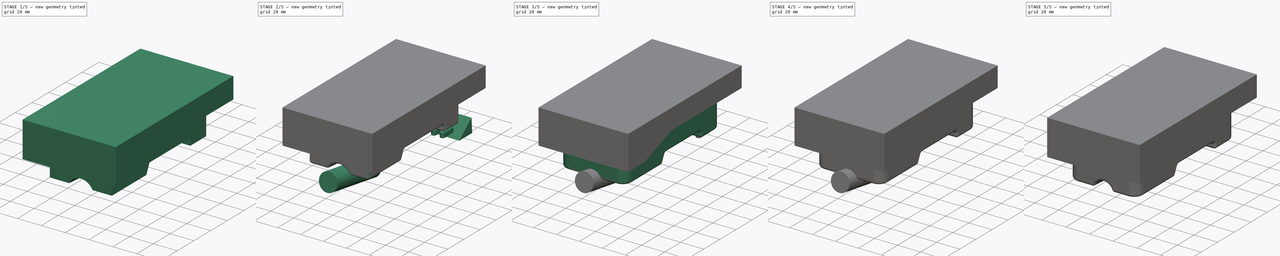
[diagram: build sequence overview — one tinted view per stage of 5, left to right]
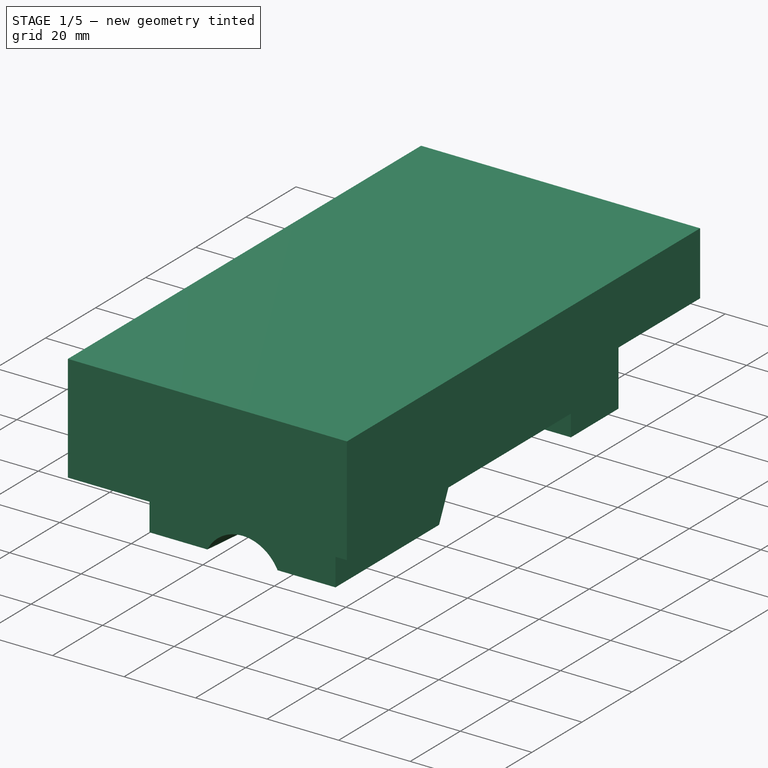
[diagram: stage 1 of 5 — iso view after this stage's code; geometry added in this stage tinted green]
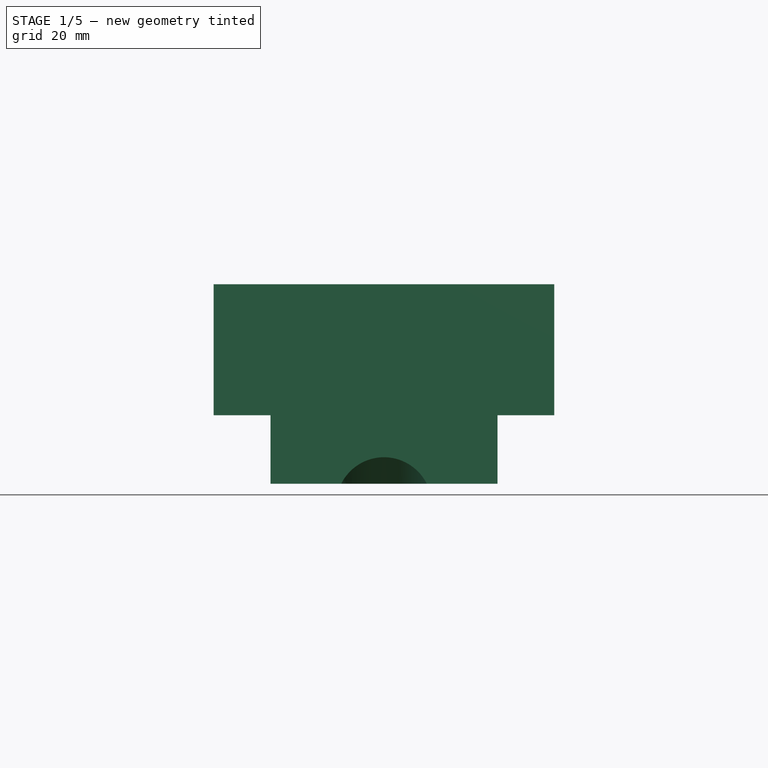
[diagram: stage 1 of 5 — front view after this stage's code; geometry added in this stage tinted green]
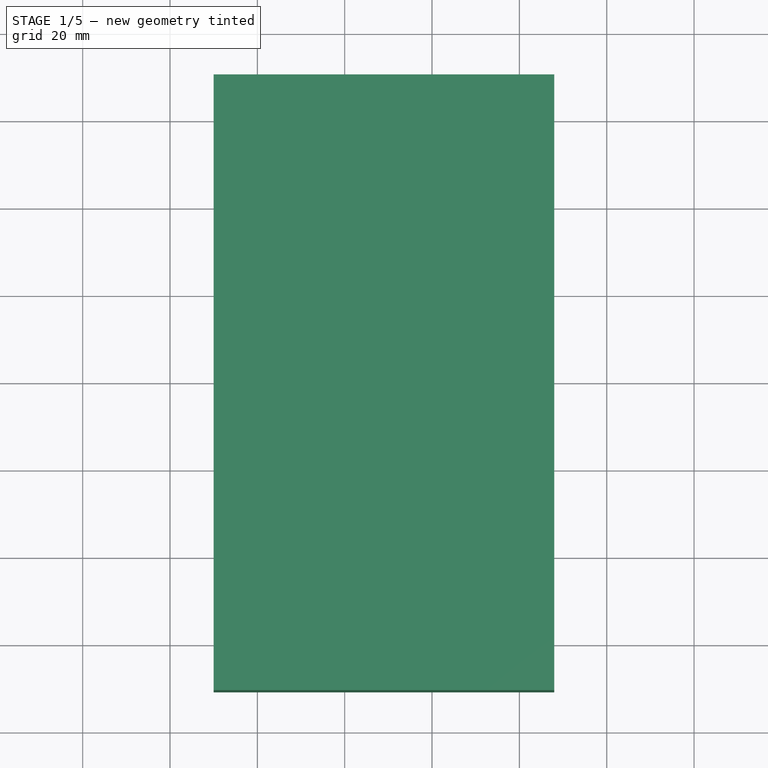
[diagram: stage 1 of 5 — top view after this stage's code; geometry added in this stage tinted green]
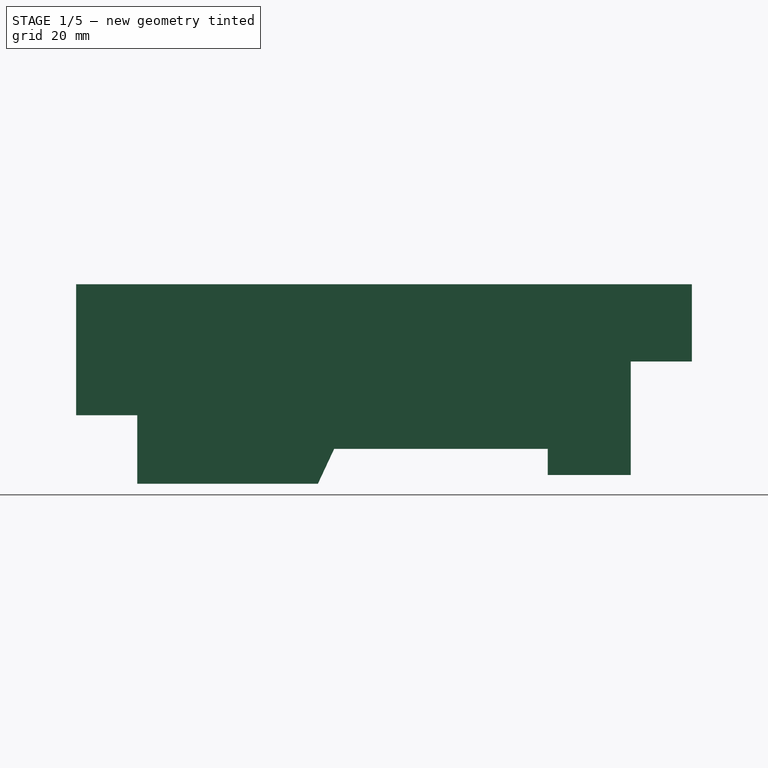
[diagram: stage 1 of 5 — right view after this stage's code; geometry added in this stage tinted green]
FCSTD DOCUMENT  (FreeCAD 0.15R4671 (Git))
Label: vaterra-caja-radio
License: All rights reserved
LicenseURL: http://en.wikipedia.org/wiki/All_rights_reserved
objects: Part::Fillet×7, Sketcher::SketchObject×6, PartDesign::Pad×6, Part::Cut×6, Part::Cylinder×2, Part::FeaturePython×1
note: 34 computed .brp shape members not serialized (recipe doc carries the construction recipe); baked Part::Feature solids carry a one-line shape summary decoded from their .brp

FEATURE [Sketcher::SketchObject] Sketch004
  Placement = pos=(3,0,0) rot=(0.57735,0.57735,0.57735;2.0944rad)
  sketch-geometry (27):
    g0: LineSegment [constr] StartX=119 StartY=2 StartZ=0 EndX=94 EndY=2 EndZ=0
    g1: LineSegment [constr] StartX=94 StartY=2 StartZ=0 EndX=94 EndY=8 EndZ=0
    g2: LineSegment [constr] StartX=94 StartY=8 StartZ=0 EndX=50 EndY=8 EndZ=0
    g3: LineSegment [constr] StartX=50 StartY=8 StartZ=0 EndX=46.2695 EndY=0 EndZ=0
    g4: LineSegment [constr] StartX=46.2695 StartY=0 StartZ=0 EndX=0 EndY=0 EndZ=0
    g5: LineSegment [constr] StartX=0 StartY=0 StartZ=0 EndX=0 EndY=25 EndZ=0
    g6: LineSegment [constr] StartX=0 StartY=25 StartZ=0 EndX=41.2695 EndY=40 EndZ=0
    g7: LineSegment [constr] StartX=41.2695 StartY=40 StartZ=0 EndX=119 EndY=40 EndZ=0
    g8: LineSegment [constr] StartX=119 StartY=40 StartZ=0 EndX=119 EndY=2 EndZ=0
    g9: LineSegment StartX=3 StartY=22.8984 StartZ=0 EndX=41.7978 EndY=37 EndZ=0
    g10: LineSegment StartX=41.7978 StartY=37 StartZ=0 EndX=116 EndY=37 EndZ=0
    g11: LineSegment StartX=116 StartY=37 StartZ=0 EndX=116 EndY=5 EndZ=0
    g12: LineSegment StartX=116 StartY=5 StartZ=0 EndX=97 EndY=5 EndZ=0
    g13: LineSegment StartX=97 StartY=5 StartZ=0 EndX=97 EndY=11 EndZ=0
    g14: LineSegment StartX=97 StartY=11 StartZ=0 EndX=48.0888 EndY=11 EndZ=0
    g15: LineSegment StartX=48.0888 StartY=11 StartZ=0 EndX=44.3583 EndY=3 EndZ=0
    g16: LineSegment StartX=44.3583 StartY=3 StartZ=0 EndX=3 EndY=3 EndZ=0
    g17: LineSegment StartX=3 StartY=3 StartZ=0 EndX=3 EndY=22.8984 EndZ=0
    g18: LineSegment [constr] StartX=3 StartY=3 StartZ=0 EndX=0 EndY=3 EndZ=0
    g19: LineSegment [constr] StartX=3 StartY=22.8984 StartZ=0 EndX=1.9752 EndY=25.7179 EndZ=0
    g20: LineSegment [constr] StartX=116 StartY=37 StartZ=0 EndX=116 EndY=40 EndZ=0
    g21: LineSegment [constr] StartX=116 StartY=37 StartZ=0 EndX=119 EndY=37 EndZ=0
    g22: LineSegment [constr] StartX=116 StartY=5 StartZ=0 EndX=116 EndY=2 EndZ=0
    g23: LineSegment [constr] StartX=97 StartY=5 StartZ=0 EndX=94 EndY=5 EndZ=0
    g24: LineSegment [constr] StartX=94 StartY=8 StartZ=0 EndX=94 EndY=11 EndZ=0
    g25: LineSegment [constr] StartX=50 StartY=8 StartZ=0 EndX=47.2811 EndY=9.26785 EndZ=0
    g26: LineSegment [constr] StartX=44.3583 StartY=3 StartZ=0 EndX=44.3583 EndY=0 EndZ=0
  constraints (80):
    c: Horizontal(g0)
    c: Coincident(g0,g1)
    c: Coincident(g1,g2)
    c: Horizontal(g2)
    c: Coincident(g2,g3)
    c: Coincident(g3,g4)
    c: Horizontal(g4)
    c: Coincident(g4,g5)
    c: Vertical(g5)
    c: Coincident(g5,g6)
    c: Coincident(g6,g7)
    c: Horizontal(g7)
    c: Coincident(g7,g8)
    c: Coincident(g8,g0)
    c: Vertical(g8)
    c: Distance(g0) = 25
    c: Vertical(g1)
    c: Distance(g2) = 44
    c: DistanceY(g3,g2) = 8
    c: Distance(g1) = 6
    c: DistanceX(g4,g2) = 50
    c: DistanceY(g7,g1) = -32
    c: Distance(g5) = 25
    c: DistanceX(g6,g3) = 5
    c: Angle(g3,g2) = 2.00713
    c: Coincident(g4,g-1)
    c: Coincident(g9,g10)
    c: Horizontal(g10)
    c: Coincident(g10,g11)
    c: Vertical(g11)
    c: Horizontal(g12)
    c: Coincident(g12,g13)
    c: Vertical(g13)
    c: Coincident(g13,g14)
    c: Horizontal(g14)
    c: Coincident(g14,g15)
    c: Coincident(g15,g16)
    c: Horizontal(g16)
    c: Coincident(g16,g17)
    c: Vertical(g17)
    c: Coincident(g9,g17)
    c: PointOnObject(g18,g5)
    c: Horizontal(g18)
    c: Coincident(g16,g18)
    c: Coincident(g19,g9)
    c: Perpendicular(g19,g6)
    c: Coincident(g20,g10)
    c: PointOnObject(g20,g7)
    c: Vertical(g20)
    c: Coincident(g21,g10)
    c: PointOnObject(g21,g8)
    c: Horizontal(g21)
    c: Coincident(g12,g11)
    c: Coincident(g22,g11)
    c: PointOnObject(g22,g0)
    c: Vertical(g22)
    c: Coincident(g23,g12)
    c: PointOnObject(g23,g1)
    c: Horizontal(g23)
    c: Coincident(g24,g1)
    c: PointOnObject(g24,g14)
    c: Vertical(g24)
    c: Coincident(g25,g2)
    c: PointOnObject(g25,g15)
    c: Perpendicular(g15,g25)
    c: Coincident(g26,g15)
    c: PointOnObject(g26,g4)
    c: Vertical(g26)
    c: Equal(g19,g18)
    c: Equal(g18,g20)
    c: Equal(g20,g21)
    c: Equal(g21,g23)
    c: Equal(g23,g22)
    c: Equal(g22,g24)
    c: Equal(g24,g26)
    c: Equal(g26,g25)
    c: Parallel(g15,g3)
    c: Parallel(g6,g9)
    c: PointOnObject(g19,g6)
    c: Distance(g18) = 3
FEATURE [PartDesign::Pad] Pad004
  Length = 52
  Length2 = 100
  Placement = pos=(3,0,0) rot=(0.57735,0.57735,0.57735;2.0944rad)
  Sketch = -> Sketch004
  Type = 0
FEATURE [Part::Cylinder] Cylinder001
  Angle = 360
  Height = 55
  Placement = pos=(29,-10,0) rot=(-1,0,0;1.72788rad)
  Radius = 11
FEATURE [Part::Cut] Cut004
  Base = -> Pad004
  Tool = -> Cylinder001
FEATURE [Sketcher::SketchObject] Sketch005
  Placement = pos=(-10,0,0) rot=(0.57735,0.57735,0.57735;2.0944rad)
  sketch-geometry (32):
    g0: LineSegment [constr] StartX=119 StartY=2 StartZ=0 EndX=94 EndY=2 EndZ=0
    g1: LineSegment [constr] StartX=94 StartY=2 StartZ=0 EndX=94 EndY=8 EndZ=0
    g2: LineSegment [constr] StartX=94 StartY=8 StartZ=0 EndX=50 EndY=8 EndZ=0
    g3: LineSegment [constr] StartX=50 StartY=8 StartZ=0 EndX=46.2695 EndY=0 EndZ=0
    g4: LineSegment [constr] StartX=46.2695 StartY=0 StartZ=0 EndX=0 EndY=0 EndZ=0
    g5: LineSegment [constr] StartX=0 StartY=0 StartZ=0 EndX=0 EndY=25 EndZ=0
    g6: LineSegment [constr] StartX=0 StartY=25 StartZ=0 EndX=41.2695 EndY=40 EndZ=0
    g7: LineSegment [constr] StartX=41.2695 StartY=40 StartZ=0 EndX=119 EndY=40 EndZ=0
    g8: LineSegment [constr] StartX=119 StartY=40 StartZ=0 EndX=119 EndY=2 EndZ=0
    g9: LineSegment StartX=9 StartY=18.6951 StartZ=0 EndX=42.8544 EndY=31 EndZ=0
    g10: LineSegment StartX=42.8544 StartY=31 StartZ=0 EndX=110 EndY=31 EndZ=0
    g11: LineSegment [constr] StartX=110 StartY=31 StartZ=0 EndX=110 EndY=11 EndZ=0
    g12: LineSegment [constr] StartX=110 StartY=11 StartZ=0 EndX=103 EndY=11 EndZ=0
    g13: LineSegment [constr] StartX=103 StartY=11 StartZ=0 EndX=103 EndY=17 EndZ=0
    g14: LineSegment [constr] StartX=103 StartY=17 StartZ=0 EndX=44.2664 EndY=17 EndZ=0
    g15: LineSegment [constr] StartX=44.2664 StartY=17 StartZ=0 EndX=40.5359 EndY=9 EndZ=0
    g16: LineSegment [constr] StartX=40.5359 StartY=9 StartZ=0 EndX=9 EndY=9 EndZ=0
    g17: LineSegment [constr] StartX=9 StartY=9 StartZ=0 EndX=9 EndY=18.6951 EndZ=0
    g18: LineSegment [constr] StartX=9 StartY=9 StartZ=0 EndX=0 EndY=9 EndZ=0
    g19: LineSegment [constr] StartX=9 StartY=18.6951 StartZ=0 EndX=5.9256 EndY=27.1537 EndZ=0
    g20: LineSegment [constr] StartX=110 StartY=31 StartZ=0 EndX=110 EndY=40 EndZ=0
    g21: LineSegment [constr] StartX=110 StartY=31 StartZ=0 EndX=119 EndY=31 EndZ=0
    g22: LineSegment [constr] StartX=110 StartY=11 StartZ=0 EndX=110 EndY=2 EndZ=0
    g23: LineSegment [constr] StartX=103 StartY=11 StartZ=0 EndX=94 EndY=11 EndZ=0
    g24: LineSegment [constr] StartX=94 StartY=8 StartZ=0 EndX=94 EndY=17 EndZ=0
    g25: LineSegment [constr] StartX=50 StartY=8 StartZ=0 EndX=41.8432 EndY=11.8036 EndZ=0
    g26: LineSegment [constr] StartX=40.5359 StartY=9 StartZ=0 EndX=40.5359 EndY=0 EndZ=0
    g27: LineSegment StartX=9 StartY=18.6951 StartZ=0 EndX=-11 EndY=18.6951 EndZ=0
    g28: LineSegment StartX=-11 StartY=18.6951 StartZ=0 EndX=-11 EndY=48.6951 EndZ=0
    g29: LineSegment StartX=-11 StartY=48.6951 StartZ=0 EndX=130 EndY=48.6951 EndZ=0
    g30: LineSegment StartX=130 StartY=48.6951 StartZ=0 EndX=130 EndY=31 EndZ=0
    g31: LineSegment StartX=130 StartY=31 StartZ=0 EndX=110 EndY=31 EndZ=0
  constraints (94):
    c: Horizontal(g0)
    c: Coincident(g0,g1)
    c: Coincident(g1,g2)
    c: Horizontal(g2)
    c: Coincident(g2,g3)
    c: Coincident(g3,g4)
    c: Horizontal(g4)
    c: Coincident(g4,g5)
    c: Vertical(g5)
    c: Coincident(g5,g6)
    c: Coincident(g6,g7)
    c: Horizontal(g7)
    c: Coincident(g7,g8)
    c: Coincident(g8,g0)
    c: Vertical(g8)
    c: Distance(g0) = 25
    c: Vertical(g1)
    c: Distance(g2) = 44
    c: DistanceY(g3,g2) = 8
    c: Distance(g1) = 6
    c: DistanceX(g4,g2) = 50
    c: DistanceY(g7,g1) = -32
    c: Distance(g5) = 25
    c: DistanceX(g6,g3) = 5
    c: Angle(g3,g2) = 2.00713
    c: Coincident(g4,g-1)
    c: Coincident(g9,g10)
    c: Horizontal(g10)
    c: Coincident(g10,g11)
    c: Vertical(g11)
    c: Horizontal(g12)
    c: Coincident(g12,g13)
    c: Vertical(g13)
    c: Coincident(g13,g14)
    c: Horizontal(g14)
    c: Coincident(g14,g15)
    c: Coincident(g15,g16)
    c: Horizontal(g16)
    c: Coincident(g16,g17)
    c: Vertical(g17)
    c: Coincident(g9,g17)
    c: PointOnObject(g18,g5)
    c: Horizontal(g18)
    c: Coincident(g16,g18)
    c: Coincident(g19,g9)
    c: Perpendicular(g19,g6)
    c: Coincident(g20,g10)
    c: PointOnObject(g20,g7)
    c: Vertical(g20)
    c: Coincident(g21,g10)
    c: PointOnObject(g21,g8)
    c: Horizontal(g21)
    c: Coincident(g12,g11)
    c: Coincident(g22,g11)
    c: PointOnObject(g22,g0)
    c: Vertical(g22)
    c: Coincident(g23,g12)
    c: PointOnObject(g23,g1)
    c: Horizontal(g23)
    c: Coincident(g24,g1)
    c: PointOnObject(g24,g14)
    c: Vertical(g24)
    c: Coincident(g25,g2)
    c: PointOnObject(g25,g15)
    c: Perpendicular(g15,g25)
    c: Coincident(g26,g15)
    c: PointOnObject(g26,g4)
    c: Vertical(g26)
    c: Equal(g19,g18)
    c: Equal(g18,g20)
    c: Equal(g20,g21)
    c: Equal(g21,g23)
    c: Equal(g23,g22)
    c: Equal(g22,g24)
    c: Equal(g24,g26)
    c: Equal(g26,g25)
    c: Parallel(g15,g3)
    c: Parallel(g6,g9)
    c: PointOnObject(g19,g6)
    c: Distance(g18) = 9
    c: Coincident(g9,g27)
    c: Horizontal(g27)
    c: Coincident(g27,g28)
    c: Vertical(g28)
    c: Coincident(g28,g29)
    c: Horizontal(g29)
    c: Coincident(g29,g30)
    c: Coincident(g30,g31)
    c: Coincident(g31,g10)
    c: Horizontal(g31)
    c: Vertical(g30)
    c: Distance(g31) = 20
    c: Distance(g27) = 20
    c: Distance(g28) = 30
FEATURE [PartDesign::Pad] Pad005
  Length = 78
  Length2 = 100
  Placement = pos=(-10,0,0) rot=(0.57735,0.57735,0.57735;2.0944rad)
  Sketch = -> Sketch005
  Type = 0
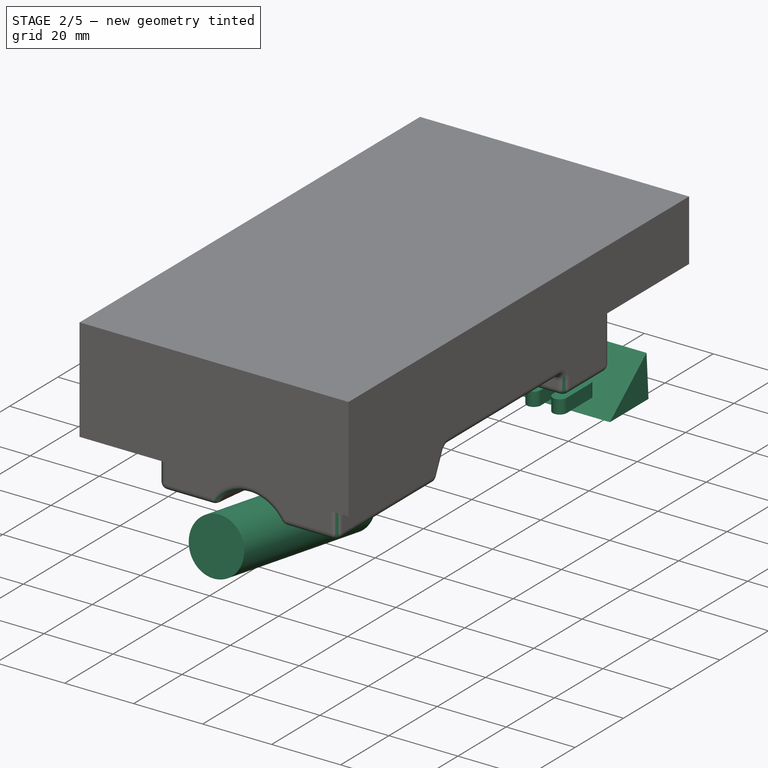
[diagram: stage 2 of 5 — iso view after this stage's code; geometry added in this stage tinted green]
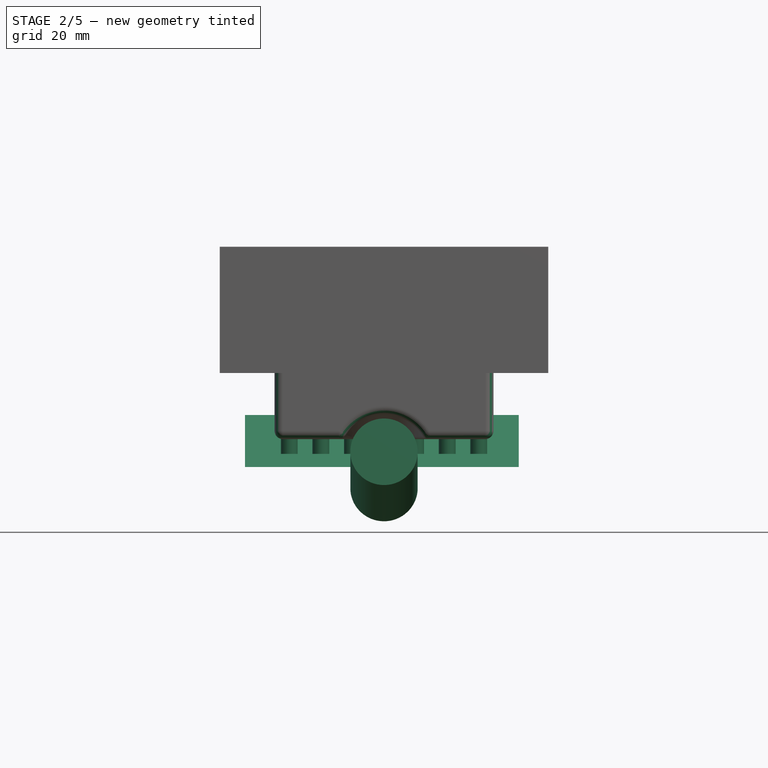
[diagram: stage 2 of 5 — front view after this stage's code; geometry added in this stage tinted green]
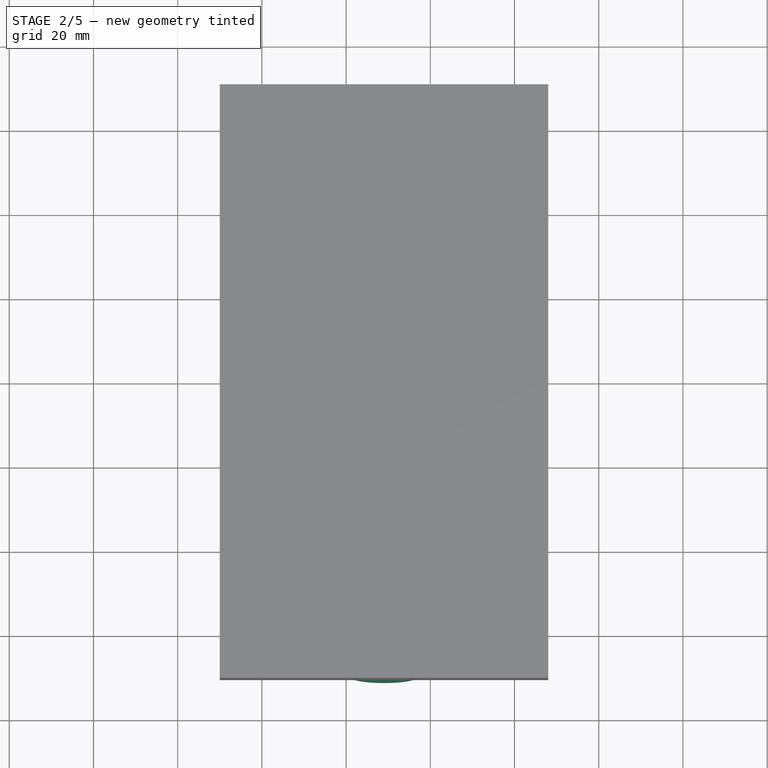
[diagram: stage 2 of 5 — top view after this stage's code; geometry added in this stage tinted green]
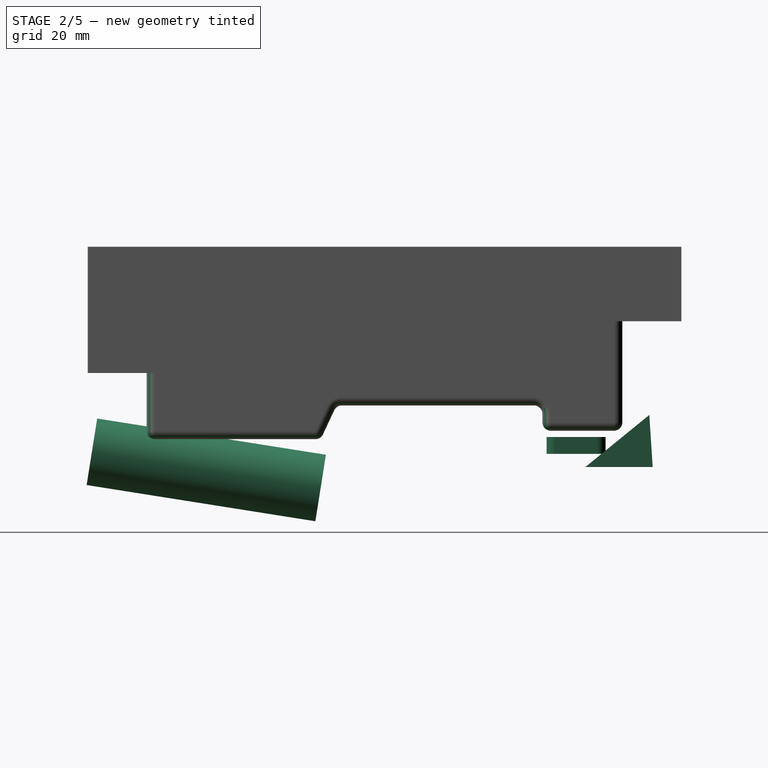
[diagram: stage 2 of 5 — right view after this stage's code; geometry added in this stage tinted green]
FEATURE [Sketcher::SketchObject] Sketch002
  Placement = pos=(-4,0,0) rot=(0.57735,0.57735,0.57735;2.0944rad)
  sketch-geometry (3):
    g0: LineSegment StartX=107.197 StartY=-3.62599 StartZ=0 EndX=122.389 EndY=8.74288 EndZ=0
    g1: LineSegment StartX=122.389 StartY=8.74288 StartZ=0 EndX=123.196 EndY=-3.62599 EndZ=0
    g2: LineSegment StartX=123.196 StartY=-3.62599 StartZ=0 EndX=107.197 EndY=-3.62599 EndZ=0
  constraints (4):
    c: Coincident(g0,g1)
    c: Coincident(g1,g2)
    c: Coincident(g2,g0)
    c: Horizontal(g2)
FEATURE [PartDesign::Pad] Pad002
  Length = 65
  Length2 = 100
  Placement = pos=(-4,0,0) rot=(0.57735,0.57735,0.57735;2.0944rad)
  Sketch = -> Sketch002
  Type = 0
FEATURE [Sketcher::SketchObject] Sketch003
  Placement = pos=(0,0,-20) rot=(-1,0,0;3.14159rad)
  sketch-geometry (4):
    g0: ArcOfCircle CenterX=6 CenterY=-100 CenterZ=0 NormalX=0 NormalY=0 NormalZ=1 Radius=2 StartAngle=4.13541e-07 EndAngle=3.14159
    g1: LineSegment StartX=4 StartY=-100 StartZ=0 EndX=4 EndY=-110 EndZ=0
    g2: LineSegment StartX=8 StartY=-100 StartZ=0 EndX=8 EndY=-110 EndZ=0
    g3: ArcOfCircle CenterX=6 CenterY=-110 CenterZ=0 NormalX=0 NormalY=0 NormalZ=1 Radius=2 StartAngle=3.14159 EndAngle=6.28319
  constraints (14):
    c: Coincident(g1,g0)
    c: Vertical(g1)
    c: Coincident(g0,g2)
    c: Vertical(g2)
    c: Coincident(g3,g1)
    c: Coincident(g3,g2)
    c: Tangent(g0,g1)
    c: Equal(g0,g3)
    c: Tangent(g1,g3)
    c: Tangent(g2,g3)
    c: Distance(g1) = 10
    c: DistanceX(g-1,g0) = 6
    c: Radius(g0) = 2
    c: DistanceY(g-1,g0) = -100
FEATURE [PartDesign::Pad] Pad003
  Length = 4
  Length2 = 100
  Placement = pos=(0,0,-20) rot=(-1,0,0;3.14159rad)
  Reversed = true
  Sketch = -> Sketch003
  Type = 0
FEATURE [Part::FeaturePython] Array  # Draft array (typed FeaturePython)
  Angle = 360
  ArrayType = 0
  Axis = (0,0,1)
  Base = -> Pad003
  Center = (0,0,0)
  Fuse = false
  IntervalAxis = (0,0,0)
  IntervalX = (7.5,0,0)
  IntervalY = (0,1,0)
  IntervalZ = (0,0,0)
  NumberPolar = 0
  NumberX = 7
  NumberY = 0
  NumberZ = 0
  Placement = pos=(0.5,0,19.5) rot=(0,0,1;0rad)
FEATURE [Part::Cylinder] Cylinder
  Angle = 360
  Height = 55
  Placement = pos=(29,-10,0) rot=(-1,0,0;1.72788rad)
  Radius = 8
FEATURE [Part::Fillet] Fillet006
  Base = -> Cut004
  Edges = 30 edges r=2: [Edge1,Edge2,Edge3,Edge4,Edge5,Edge6,Edge7,Edge8,Edge9,Edge10,Edge11,Edge12,Edge13,Edge14,Edge15,Edge16,Edge17,Edge18,Edge19,Edge20,Edge21,Edge22,Edge23,Edge24,Edge25,Edge26,Edge27,Edge28,Edge29,Edge30]
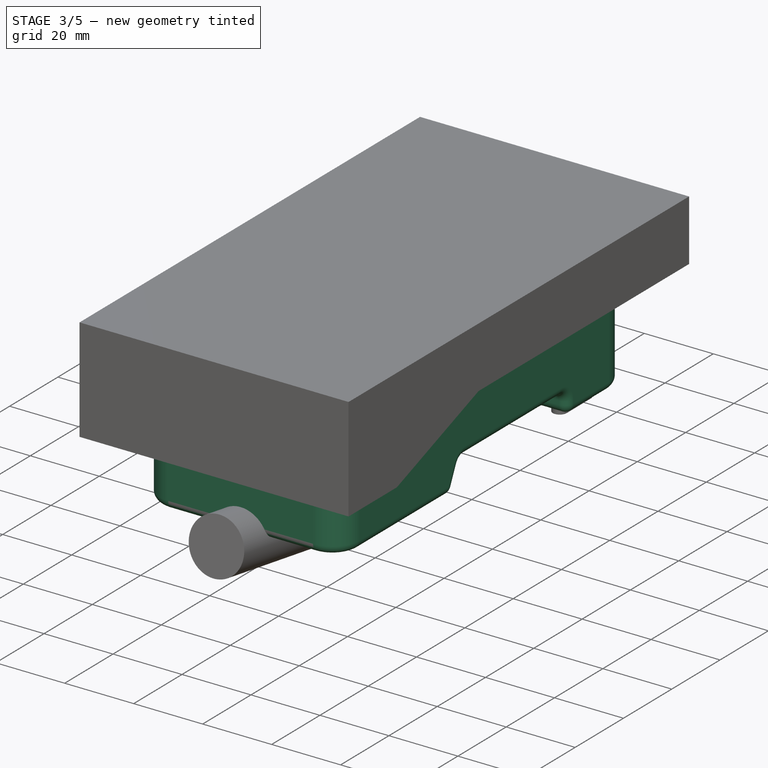
[diagram: stage 3 of 5 — iso view after this stage's code; geometry added in this stage tinted green]
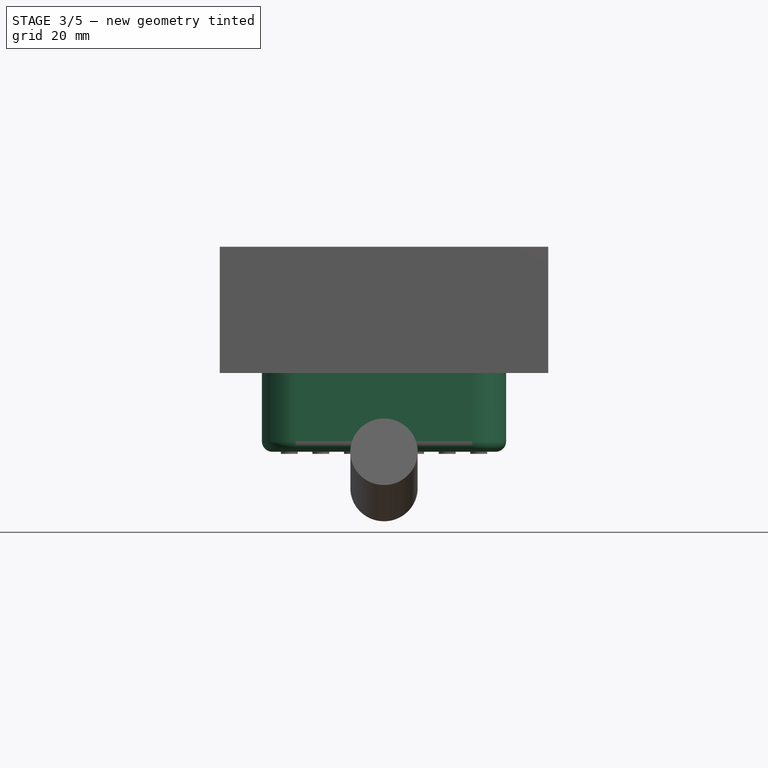
[diagram: stage 3 of 5 — front view after this stage's code; geometry added in this stage tinted green]
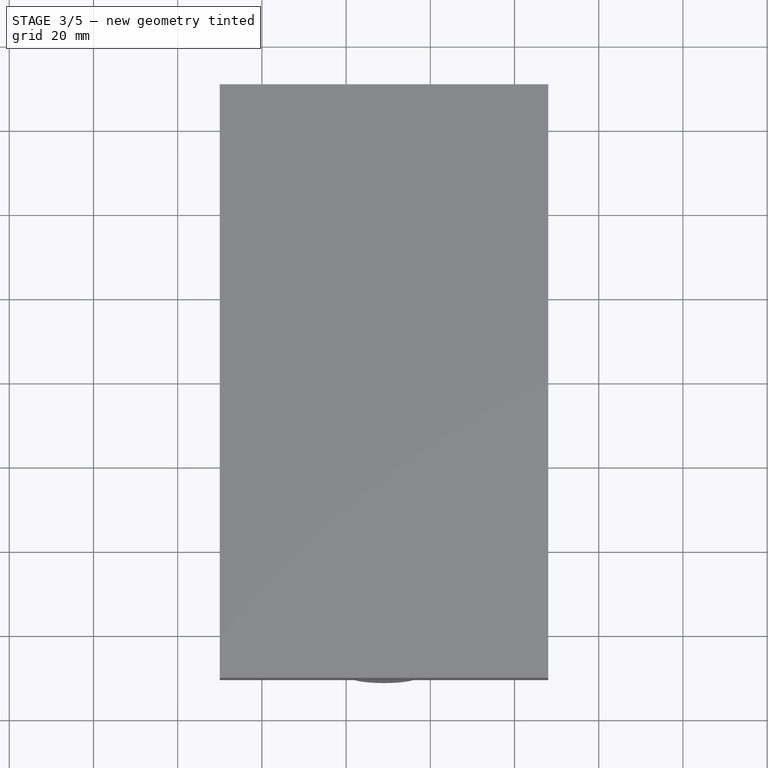
[diagram: stage 3 of 5 — top view after this stage's code; geometry added in this stage tinted green]
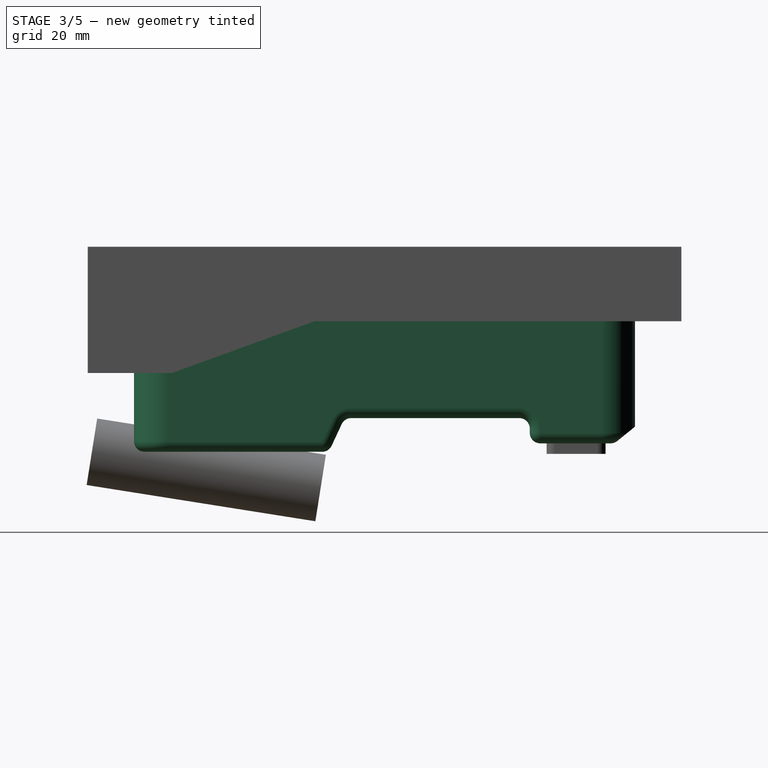
[diagram: stage 3 of 5 — right view after this stage's code; geometry added in this stage tinted green]
FEATURE [Sketcher::SketchObject] Sketch
  Placement = pos=(0,0,0) rot=(0.57735,0.57735,0.57735;2.0944rad)
  sketch-geometry (9):
    g0: LineSegment StartX=119 StartY=2 StartZ=0 EndX=94 EndY=2 EndZ=0
    g1: LineSegment StartX=94 StartY=2 StartZ=0 EndX=94 EndY=8 EndZ=0
    g2: LineSegment StartX=94 StartY=8 StartZ=0 EndX=50 EndY=8 EndZ=0
    g3: LineSegment StartX=50 StartY=8 StartZ=0 EndX=46.2695 EndY=0 EndZ=0
    g4: LineSegment StartX=46.2695 StartY=0 StartZ=0 EndX=0 EndY=0 EndZ=0
    g5: LineSegment StartX=0 StartY=0 StartZ=0 EndX=0 EndY=25 EndZ=0
    g6: LineSegment StartX=0 StartY=25 StartZ=0 EndX=41.2695 EndY=40 EndZ=0
    g7: LineSegment StartX=41.2695 StartY=40 StartZ=0 EndX=119 EndY=40 EndZ=0
    g8: LineSegment StartX=119 StartY=40 StartZ=0 EndX=119 EndY=2 EndZ=0
  constraints (26):
    c: Horizontal(g0)
    c: Coincident(g0,g1)
    c: Coincident(g1,g2)
    c: Horizontal(g2)
    c: Coincident(g2,g3)
    c: Coincident(g3,g4)
    c: Horizontal(g4)
    c: Coincident(g4,g5)
    c: Vertical(g5)
    c: Coincident(g5,g6)
    c: Coincident(g6,g7)
    c: Horizontal(g7)
    c: Coincident(g7,g8)
    c: Coincident(g8,g0)
    c: Vertical(g8)
    c: Distance(g0) = 25
    c: Vertical(g1)
    c: Distance(g2) = 44
    c: DistanceY(g3,g2) = 8
    c: Distance(g1) = 6
    c: DistanceX(g4,g2) = 50
    c: DistanceY(g7,g1) = -32
    c: Distance(g5) = 25
    c: DistanceX(g6,g3) = 5
    c: Angle(g3,g2) = 2.00713
    c: Coincident(g4,g-1)
FEATURE [PartDesign::Pad] Pad
  Length = 58
  Length2 = 100
  Placement = pos=(0,0,0) rot=(0.57735,0.57735,0.57735;2.0944rad)
  Sketch = -> Sketch
  Type = 0
FEATURE [Part::Fillet] Fillet
  Base = -> Pad
  Edges = 10 edges r=8: [Edge17,Edge18,Edge19,Edge21,Edge22,Edge23,Edge24,Edge25,Edge26,Edge27]
FEATURE [Part::Cut] Cut
  Base = -> Fillet
  Tool = -> Pad002
FEATURE [Part::Fillet] Fillet001
  Base = -> Cut
  Edges = 20 edges r=2.5: [Edge1,Edge2,Edge3,Edge4,Edge5,Edge6,Edge11,Edge13,Edge15,Edge17,Edge18,Edge19,Edge22,Edge24,Edge26,Edge37,Edge40,Edge41,Edge44,Edge45]
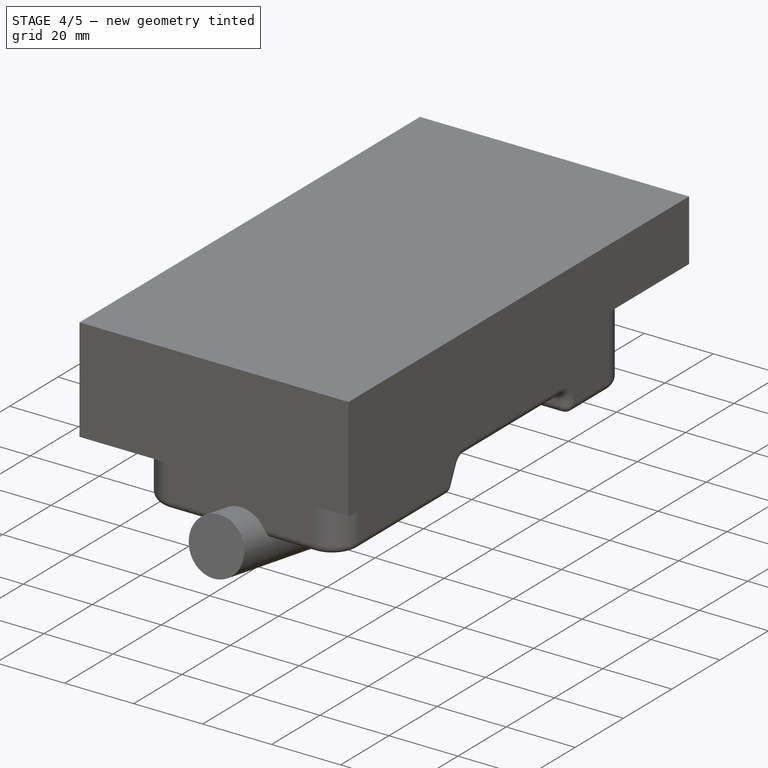
[diagram: stage 4 of 5 — iso view after this stage's code; geometry added in this stage tinted green]
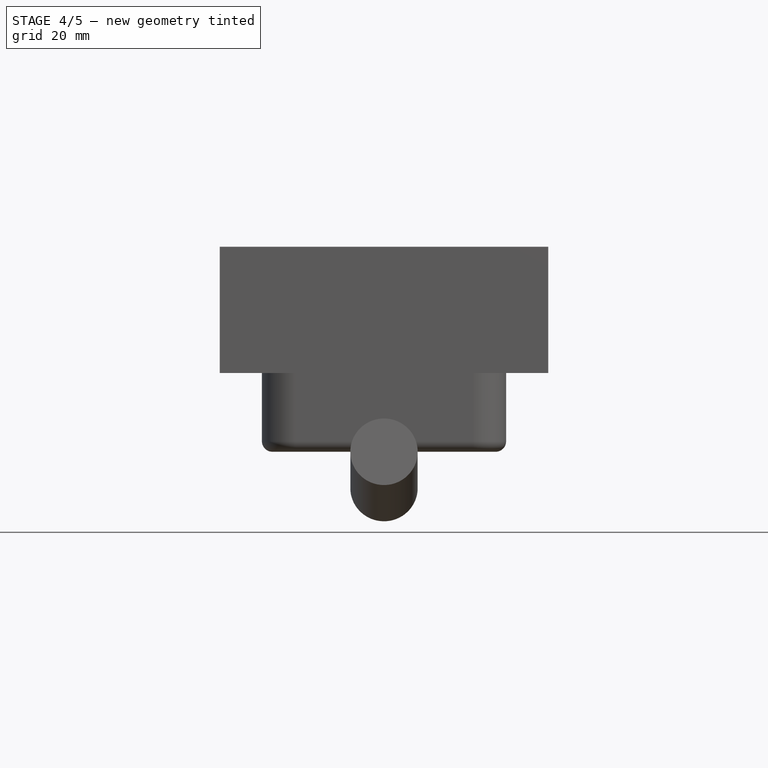
[diagram: stage 4 of 5 — front view after this stage's code; geometry added in this stage tinted green]
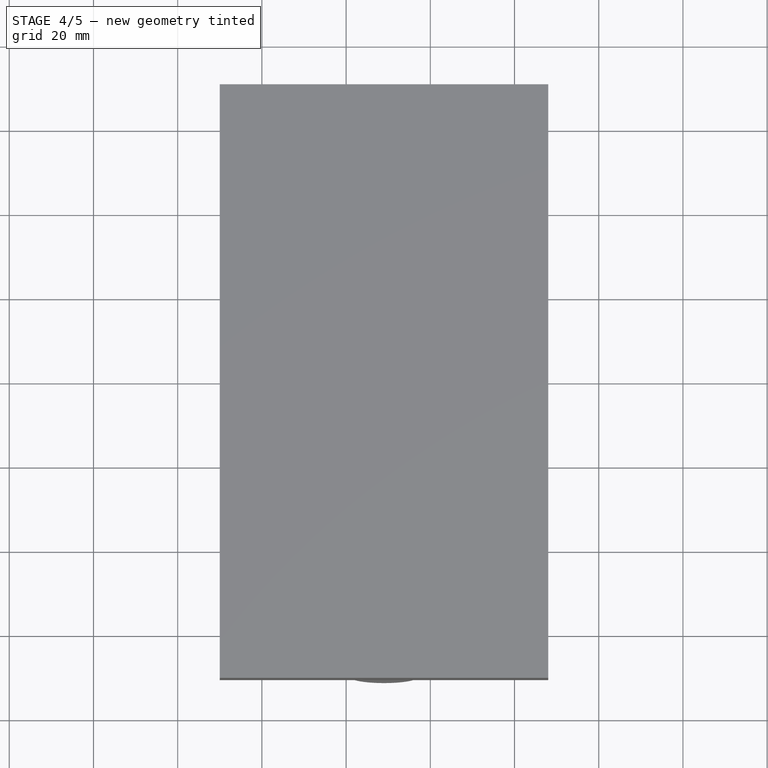
[diagram: stage 4 of 5 — top view after this stage's code; geometry added in this stage tinted green]
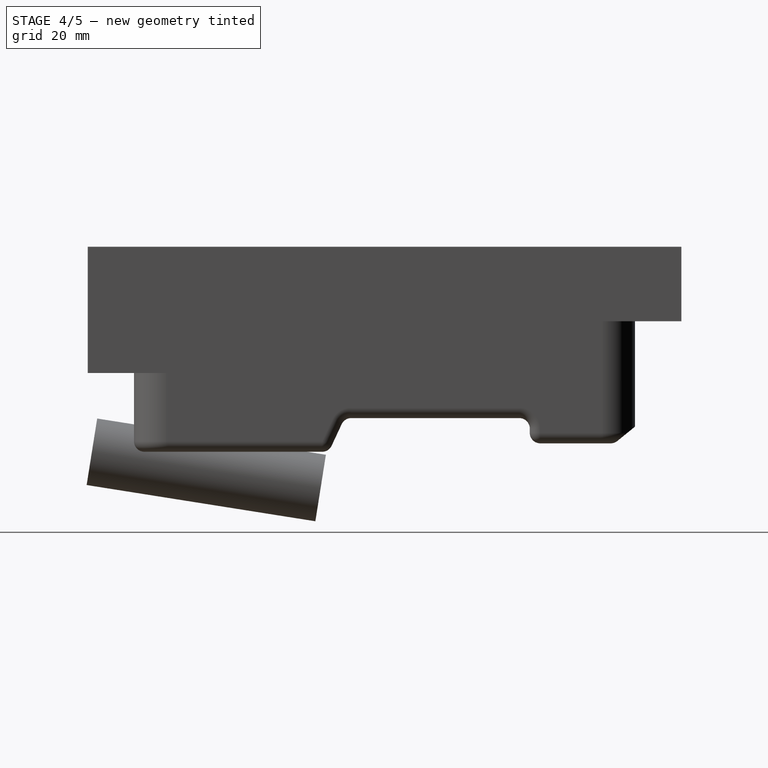
[diagram: stage 4 of 5 — right view after this stage's code; geometry added in this stage tinted green]
FEATURE [Sketcher::SketchObject] Sketch001
  Placement = pos=(0,0,6.5) rot=(-1,0,0;3.14159rad)
  sketch-geometry (20):
    g0: LineSegment StartX=5 StartY=-56.5 StartZ=0 EndX=5 EndY=-86.5 EndZ=0
    g1: LineSegment StartX=7.5 StartY=-89 StartZ=0 EndX=19.5 EndY=-89 EndZ=0
    g2: LineSegment StartX=21.8212 StartY=-85.5715 StartZ=0 EndX=9.82119 EndY=-55.5715 EndZ=0
    g3: LineSegment StartX=18.2703 StartY=-54 StartZ=0 EndX=39.7297 EndY=-54 EndZ=0
    g4: LineSegment StartX=42.0509 StartY=-57.4285 StartZ=0 EndX=31.3212 EndY=-84.2527 EndZ=0
    g5: LineSegment StartX=26.6788 StartY=-84.2527 StartZ=0 EndX=15.9491 EndY=-57.4285 EndZ=0
    g6: LineSegment StartX=36.1788 StartY=-85.5715 StartZ=0 EndX=48.1788 EndY=-55.5715 EndZ=0
    g7: LineSegment StartX=53 StartY=-56.5 StartZ=0 EndX=53 EndY=-86.5 EndZ=0
    g8: LineSegment StartX=50.5 StartY=-89 StartZ=0 EndX=38.5 EndY=-89 EndZ=0
    g9: ArcOfCircle CenterX=7.5 CenterY=-56.5 CenterZ=0 NormalX=0 NormalY=0 NormalZ=1 Radius=2.5 StartAngle=0.380506 EndAngle=3.14159
    g10: ArcOfCircle CenterX=7.5 CenterY=-86.5 CenterZ=0 NormalX=0 NormalY=0 NormalZ=1 Radius=2.5 StartAngle=3.14159 EndAngle=4.71239
    g11: ArcOfCircle CenterX=19.5 CenterY=-86.5 CenterZ=0 NormalX=0 NormalY=0 NormalZ=1 Radius=2.5 StartAngle=4.71239 EndAngle=6.66369
    g12: ArcOfCircle CenterX=18.2703 CenterY=-56.5 CenterZ=0 NormalX=0 NormalY=0 NormalZ=1 Radius=2.5 StartAngle=1.5708 EndAngle=3.5221
    g13: ArcOfCircle CenterX=29 CenterY=-83.3242 CenterZ=0 NormalX=0 NormalY=0 NormalZ=1 Radius=2.5 StartAngle=3.5221 EndAngle=5.90268
    g14: ArcOfCircle CenterX=39.7297 CenterY=-56.5 CenterZ=0 NormalX=0 NormalY=0 NormalZ=1 Radius=2.5 StartAngle=5.90268 EndAngle=7.85398
    g15: ArcOfCircle CenterX=50.5 CenterY=-56.5 CenterZ=0 NormalX=0 NormalY=0 NormalZ=1 Radius=2.5 StartAngle=0 EndAngle=2.76109
    g16: ArcOfCircle CenterX=50.5 CenterY=-86.5 CenterZ=0 NormalX=0 NormalY=0 NormalZ=1 Radius=2.5 StartAngle=4.71239 EndAngle=6.28319
    g17: ArcOfCircle CenterX=38.5 CenterY=-86.5 CenterZ=0 NormalX=0 NormalY=0 NormalZ=1 Radius=2.5 StartAngle=2.76109 EndAngle=4.71239
    g18: LineSegment [constr] StartX=15.9491 StartY=-57.4285 StartZ=0 EndX=11.3068 EndY=-59.2854 EndZ=0
    g19: LineSegment [constr] StartX=42.0509 StartY=-57.4285 StartZ=0 EndX=46.6932 EndY=-59.2854 EndZ=0
  constraints (53):
    c: Vertical(g0)
    c: Horizontal(g1)
    c: Horizontal(g3)
    c: Vertical(g7)
    c: Horizontal(g8)
    c: Tangent(g2,g9) = -1.5708
    c: Tangent(g0,g9) = -1.5708
    c: Tangent(g0,g10) = -1.5708
    c: Tangent(g1,g10) = -1.5708
    c: Tangent(g1,g11) = -1.5708
    c: Tangent(g2,g11) = -1.5708
    c: Tangent(g5,g12) = 1.5708
    c: Tangent(g3,g12) = 1.5708
    c: Tangent(g5,g13) = 1.5708
    c: Tangent(g4,g13) = 1.5708
    c: Tangent(g3,g14) = 1.5708
    c: Tangent(g4,g14) = 1.5708
    c: Tangent(g6,g15) = 1.5708
    c: Tangent(g7,g15) = 1.5708
    c: Tangent(g7,g16) = 1.5708
    c: Tangent(g8,g16) = 1.5708
    c: Tangent(g6,g17) = 1.5708
    c: Tangent(g8,g17) = 1.5708
    c: Radius(g9) = 2.5
    c: Equal(g9,g12)
    c: Equal(g9,g10)
    c: Equal(g9,g11)
    c: Equal(g9,g14)
    c: Equal(g9,g13)
    c: Equal(g9,g17)
    c: Equal(g9,g16)
    c: Equal(g9,g15)
    c: Equal(g2,g6)
    c: Equal(g0,g7)
    c: Equal(g1,g8)
    c: Equal(g5,g4)
    c: Parallel(g2,g5)
    c: Parallel(g4,g6)
    c: Coincident(g18,g5)
    c: PointOnObject(g18,g2)
    c: Perpendicular(g2,g18)
    c: Distance(g18) = 5
    c: Coincident(g19,g4)
    c: PointOnObject(g19,g6)
    c: Perpendicular(g6,g19)
    c: Equal(g19,g18)
    c: DistanceX(g-1,g0) = 5
    c: Distance(g1) = 12
    c: DistanceX(g0,g7) = 48
    c: Distance(g0) = 30
    c: DistanceY(g8,g1) = 0
    c: DistanceY(g-1,g0) = -86.5
    c: DistanceY(g3,g1) = -35
FEATURE [PartDesign::Pad] Pad001
  Length = 3
  Length2 = 100
  Placement = pos=(0,0,6.5) rot=(-1,0,0;3.14159rad)
  Reversed = true
  Sketch = -> Sketch001
  Type = 0
FEATURE [Part::Cut] Cut001
  Base = -> Fillet001
  Tool = -> Pad001
FEATURE [Part::Fillet] Fillet002
  Base = -> Cut001
  Edges = 18 edges r=0.6: [Edge144,Edge146,Edge149,Edge150,Edge153,Edge154,Edge156,Edge158,Edge161,Edge162,Edge165,Edge166,Edge168,Edge171,Edge173,Edge175,Edge177,Edge178]
FEATURE [Part::Fillet] Fillet003
  Base = -> Fillet002
  Edges = 3 edges r=0.6: [Edge16,Edge24,Edge26]
FEATURE [Part::Cut] Cut002
  Base = -> Fillet003
  Tool = -> Array
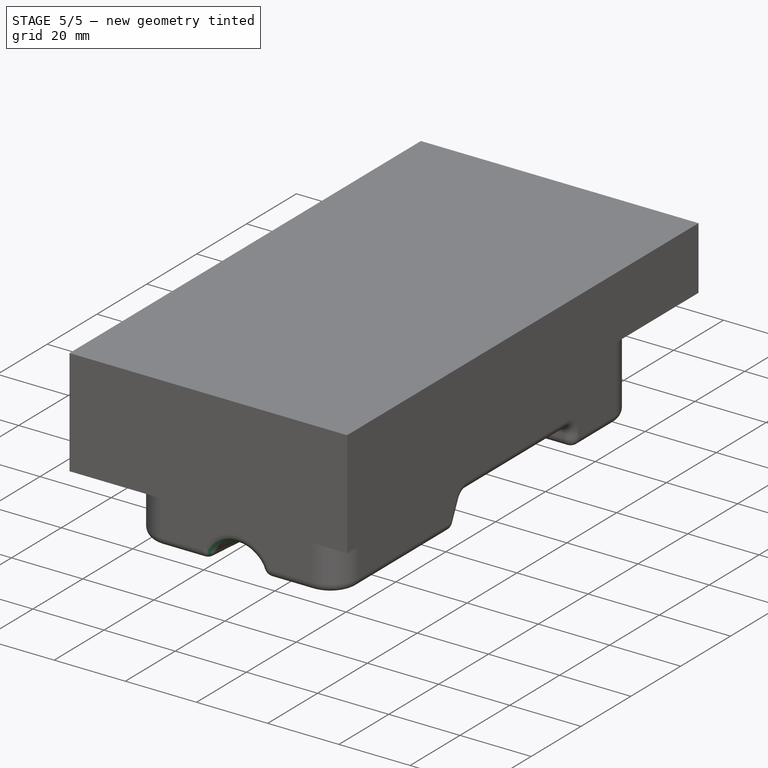
[diagram: stage 5 of 5 — iso view after this stage's code; geometry added in this stage tinted green]
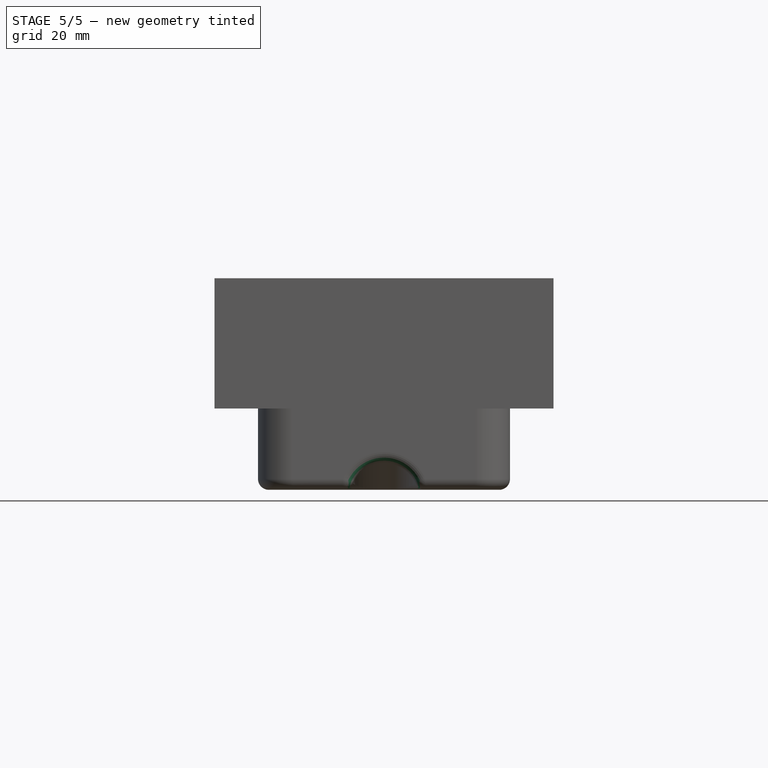
[diagram: stage 5 of 5 — front view after this stage's code; geometry added in this stage tinted green]
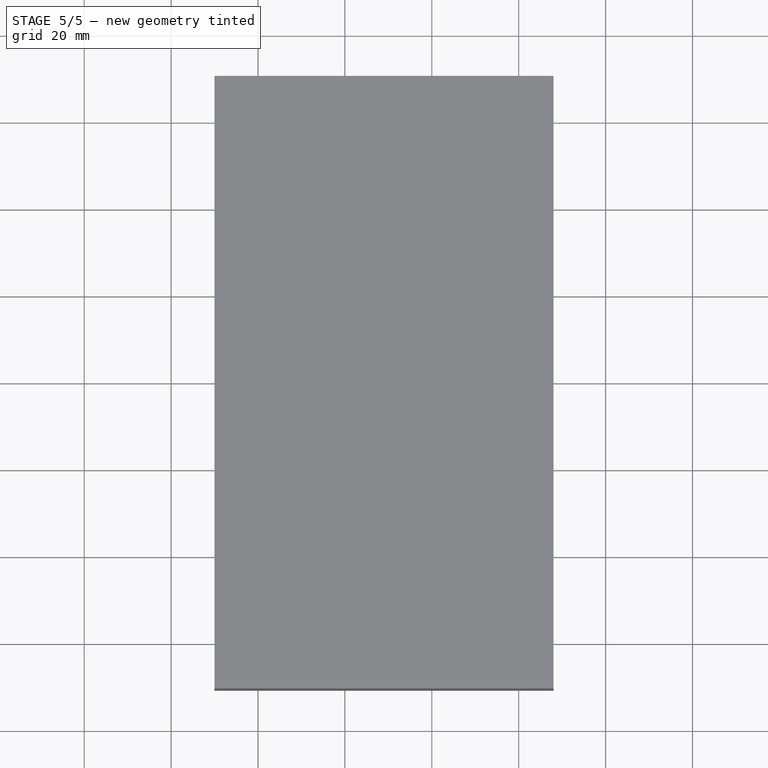
[diagram: stage 5 of 5 — top view after this stage's code; geometry added in this stage tinted green]
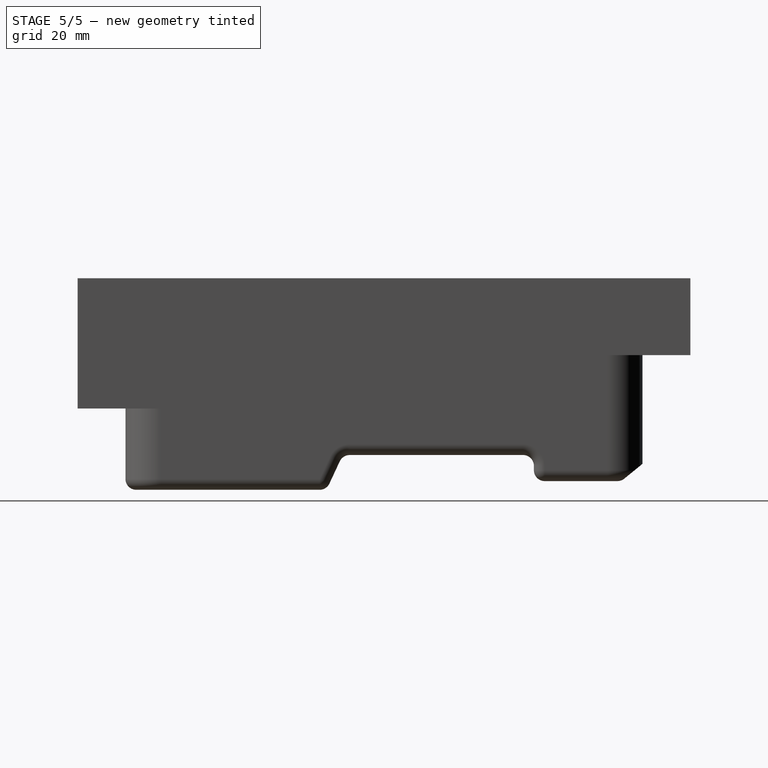
[diagram: stage 5 of 5 — right view after this stage's code; geometry added in this stage tinted green]
FEATURE [Part::Fillet] Fillet004
  Base = -> Cut002
  Edges = 35 edges r=0.6: [Edge234,Edge236,Edge240,Edge245,Edge250,Edge253,Edge258,Edge280,Edge283,Edge285,Edge286,Edge288,Edge290,Edge293,Edge294,Edge296,Edge298,Edge301,Edge302,Edge304,Edge307,Edge308,Edge310,Edge312,Edge315,Edge317,Edge318,Edge320,Edge323,Edge324,Edge326,Edge328,Edge331,Edge333,Edge334]
FEATURE [Part::Cut] Cut003
  Base = -> Fillet004
  Tool = -> Cylinder
FEATURE [Part::Fillet] Fillet005
  Base = -> Cut003
  Edges = 1 edges r=2.5: [Edge332]
FEATURE [Part::Cut] Cut005
  Base = -> Fillet005
  Tool = -> Fillet006
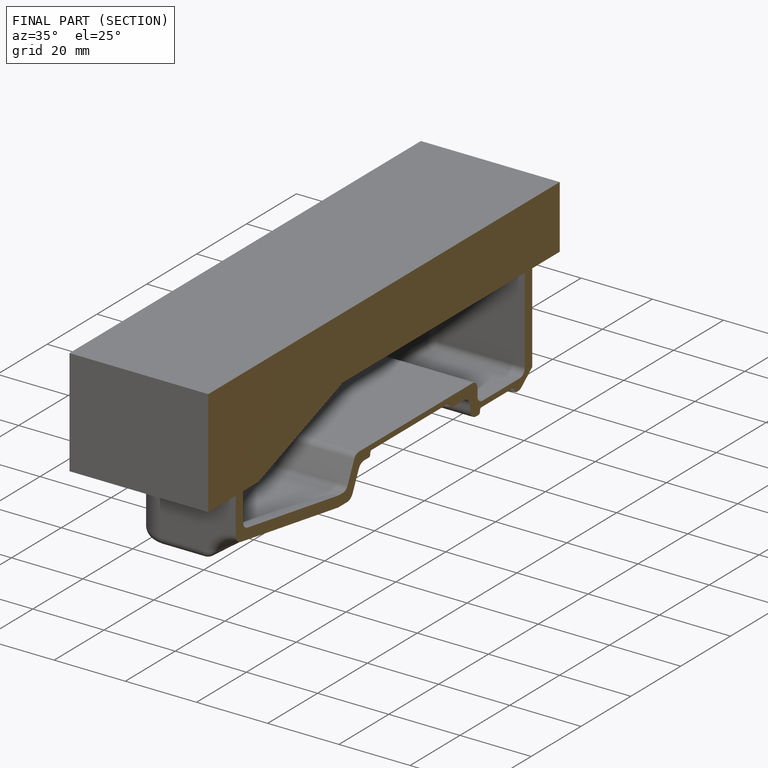
[diagram: finished part — half-section view (interior)]
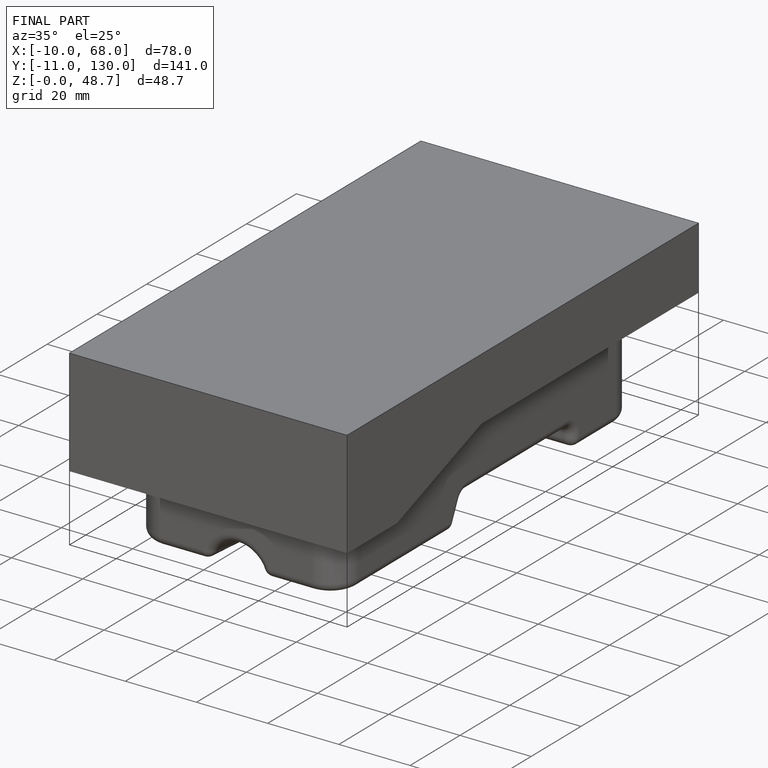
[diagram: finished part — iso view with bounding-box wireframe]
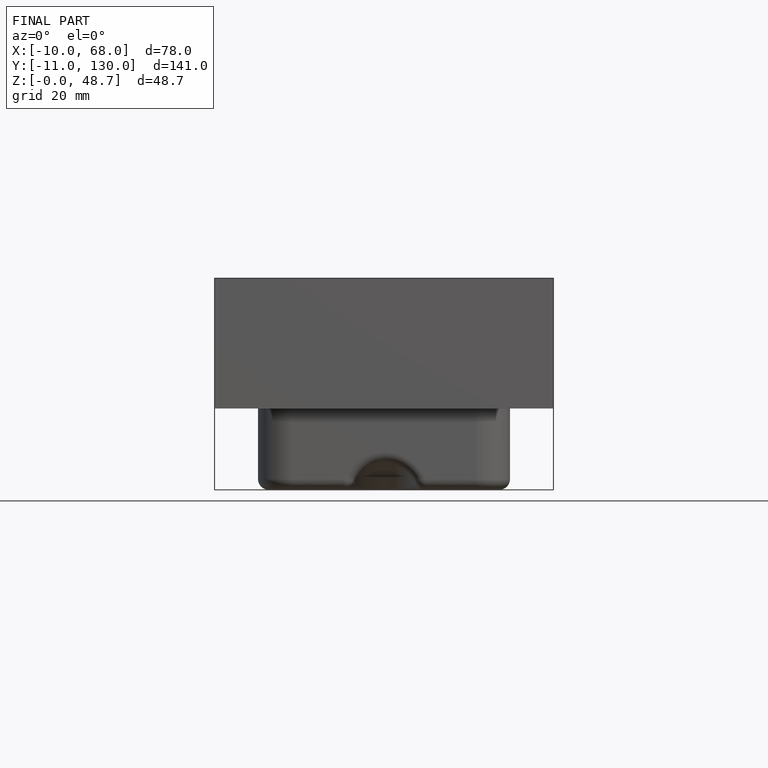
[diagram: finished part — front view with bounding-box wireframe]
